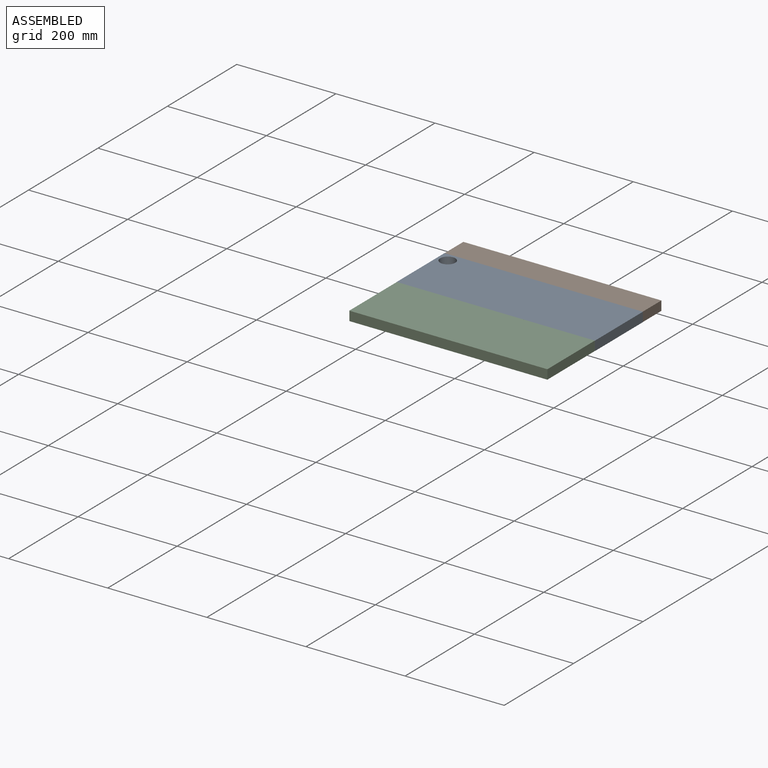
[diagram: assembled view]
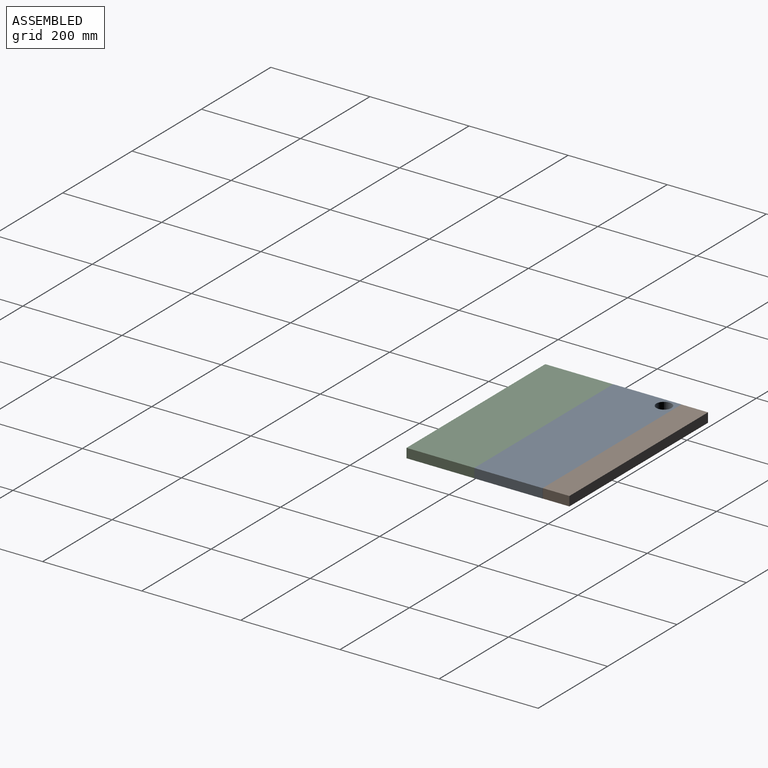
[diagram: assembled view, second angle]
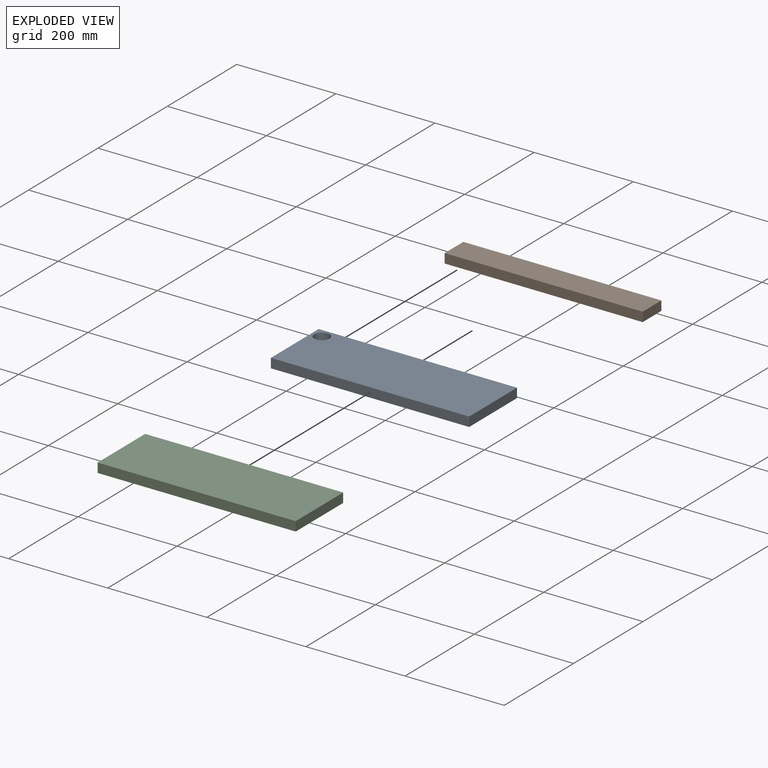
[diagram: exploded view]
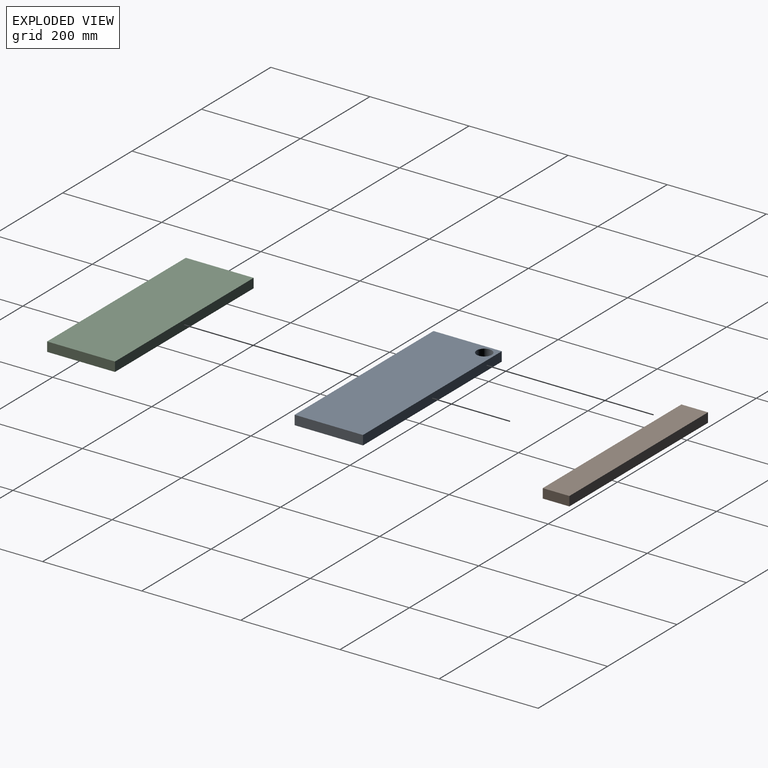
[diagram: exploded view, second angle]
ASSEMBLY  parts=3 mates=2
PART A: 7 faces, bbox 400.1x137.9x19 mm
  f0: plane 400.13x19mm, normal (0,-1,0), area 7602.5mm2, adj f1,f4,f5,f6
  f1: plane 137.9x19mm, normal (1,0,0), area 2620.2mm2, adj f0,f2,f5,f6
  f2: plane 400.13x19mm, normal (0,1,0), area 7602.5mm2, adj f1,f4,f5,f6
  f3: cylinder r=15.34mm len=30.67mm, axis (0,0,-1), area 1830.8mm2, adj f5,f6
  f4: plane 137.9x19mm, normal (-1,0,0), area 2620.2mm2, adj f0,f2,f5,f6
  f5: plane 400.13x137.9mm, normal (0,0,1), area 54440.5mm2, adj f0,f1,f2,f3,f4
  f6: plane 400.13x137.9mm, normal (0,0,-1), area 54440.5mm2, adj f0,f1,f2,f3,f4
PART B: 6 faces, bbox 399.6x53.7x19 mm
  f0: plane 53.74x19mm, normal (-1,0,0), area 1021mm2, adj f1,f3,f4,f5
  f1: plane 399.62x19mm, normal (0,-1,0), area 7592.7mm2, adj f0,f2,f4,f5
  f2: plane 53.74x19mm, normal (1,0,0), area 1021mm2, adj f1,f3,f4,f5
  f3: plane 399.62x19mm, normal (0,1,0), area 7592.7mm2, adj f0,f2,f4,f5
  f4: plane 399.62x53.74mm, normal (0,0,1), area 21473.6mm2, adj f0,f1,f2,f3
  f5: plane 399.62x53.74mm, normal (0,0,-1), area 21473.6mm2, adj f0,f1,f2,f3
PART C: 6 faces, bbox 399.6x136.9x19 mm
  f0: plane 136.89x19mm, normal (-1,0,0), area 2600.9mm2, adj f1,f3,f4,f5
  f1: plane 399.62x19mm, normal (0,-1,0), area 7592.7mm2, adj f0,f2,f4,f5
  f2: plane 136.89x19mm, normal (1,0,0), area 2600.9mm2, adj f1,f3,f4,f5
  f3: plane 399.62x19mm, normal (0,1,0), area 7592.7mm2, adj f0,f2,f4,f5
  f4: plane 399.62x136.89mm, normal (0,0,1), area 54703.7mm2, adj f0,f1,f2,f3
  f5: plane 399.62x136.89mm, normal (0,0,-1), area 54703.7mm2, adj f0,f1,f2,f3
PLACE A t=(4.03,-114.71,58.23)mm
PLACE B t=(4.29,-202.61,58.23)mm
PLACE C t=(4.29,-84.58,58.23)mm
MATE revolute A.f0 <-> C.f3  axis (0,-1,0) through (-262.27,-192.51,67.73)mm
MATE revolute A.f2 <-> B.f1  axis (0,1,0) through (-262.27,-54.6,67.73)mm
